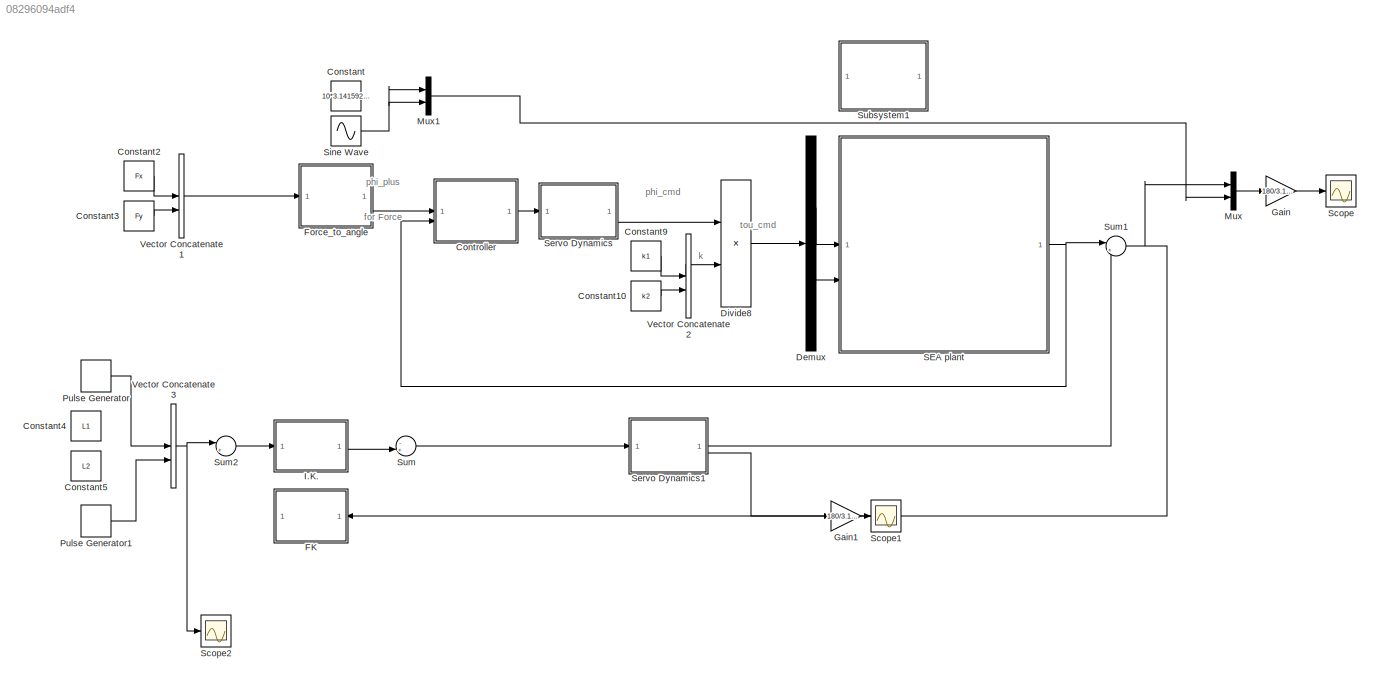
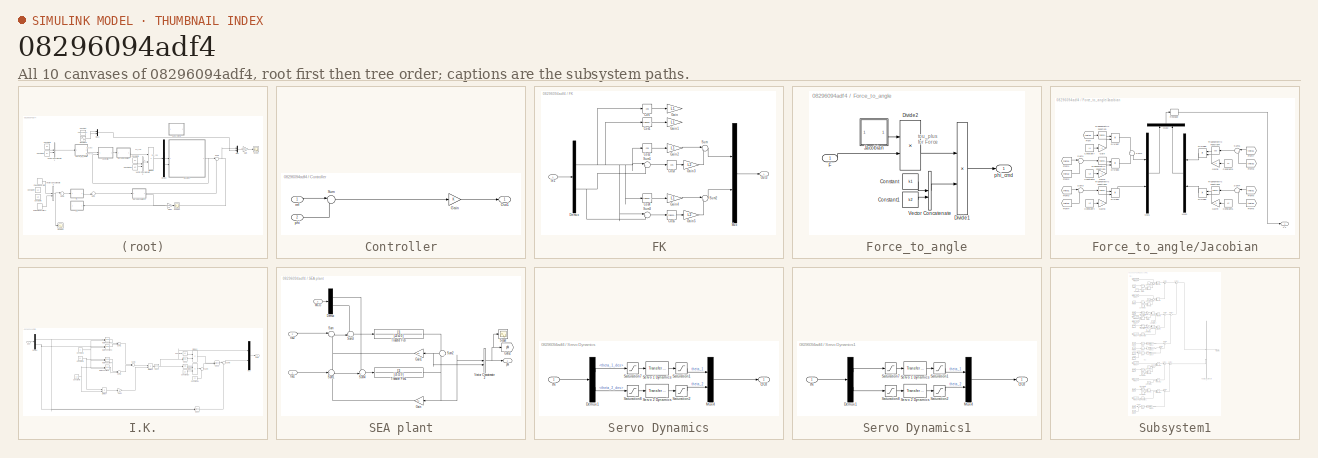
[diagram: thumbnail index - all 10 canvases of the model, root first then tree order]
MODEL slx_08296094adf4
KIND model
CONFIG AbsTol = auto
CONFIG EnableMultiTasking = off
CONFIG FixedStep = auto
CONFIG MaxStep = auto
CONFIG MinStep = auto
CONFIG RelTol = 1e-3
CONFIG SampleTimeConstraint = Unconstrained
CONFIG SolverName = VariableStepAuto
CONFIG StartTime = 0.0
CONFIG StopTime = 30
BLOCK [Constant] Constant
  Value = 10*3.141592/180
BLOCK [Constant] Constant10
  Value = k2
BLOCK [Constant] Constant2
  Value = Fx
BLOCK [Constant] Constant3
  Value = Fy
BLOCK [Constant] Constant4
  Value = L1
BLOCK [Constant] Constant5
  Value = L2
BLOCK [Constant] Constant9
  Value = k1
BLOCK [SubSystem] Controller
BLOCK [Gain] Controller/Gain
BLOCK [Outport] Controller/Out1
BLOCK [Sum] Controller/Sum
  Inputs = |+-
BLOCK [Inport] Controller/phi
  Port = 2
BLOCK [Inport] Controller/ref
BLOCK [Demux] Demux
  Outputs = 2
BLOCK [Product] Divide8
  Inputs = **
BLOCK [SubSystem] FK
BLOCK [Trigonometry] FK/Cos
  Commented = on
  Operator = cos
BLOCK [Trigonometry] FK/Cos1
  Commented = on
BLOCK [Trigonometry] FK/Cos2
  Operator = cos
BLOCK [Trigonometry] FK/Cos3
  Operator = cos
BLOCK [Trigonometry] FK/Cos4
BLOCK [Trigonometry] FK/Cos5
BLOCK [Demux] FK/Demux
  Outputs = 2
BLOCK [Gain] FK/Gain
  Commented = on
  Gain = L1
BLOCK [Gain] FK/Gain1
  Commented = on
  Gain = L1
BLOCK [Gain] FK/Gain2
  Gain = L1
BLOCK [Gain] FK/Gain3
  Gain = L2
BLOCK [Gain] FK/Gain4
  Gain = L1
BLOCK [Gain] FK/Gain5
  Gain = L2
BLOCK [Inport] FK/In1
BLOCK [Mux] FK/Mux
  DisplayOption = bar
  Inputs = 2
BLOCK [Outport] FK/Out3
BLOCK [Sum] FK/Sum
  Inputs = |++
BLOCK [Sum] FK/Sum1
  Inputs = |++
BLOCK [Sum] FK/Sum2
  Inputs = |++
BLOCK [Sum] FK/Sum3
  Inputs = |++
BLOCK [SubSystem] Force_to_angle
BLOCK [Constant] Force_to_angle/Constant
  Value = k1
BLOCK [Constant] Force_to_angle/Constant1
  Value = k2
BLOCK [Product] Force_to_angle/Divide1
  Inputs = */
BLOCK [Product] Force_to_angle/Divide2
  Inputs = **
  Multiplication = Matrix(*)
BLOCK [Inport] Force_to_angle/F
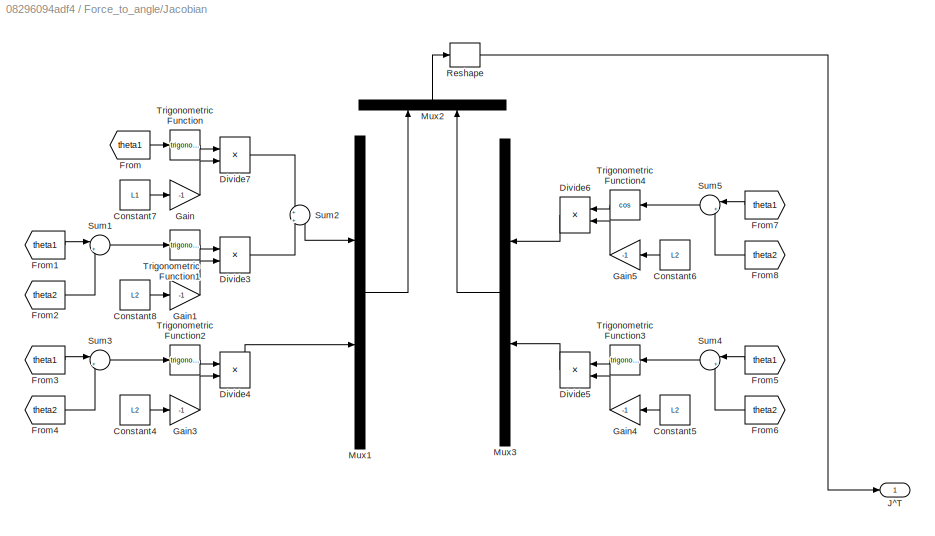
BLOCK [SubSystem] Force_to_angle/Jacobian
BLOCK [Constant] Force_to_angle/Jacobian/Constant4
  Value = L2
BLOCK [Constant] Force_to_angle/Jacobian/Constant5
  Value = L2
BLOCK [Constant] Force_to_angle/Jacobian/Constant6
  Value = L2
BLOCK [Constant] Force_to_angle/Jacobian/Constant7
  Value = L1
BLOCK [Constant] Force_to_angle/Jacobian/Constant8
  Value = L2
BLOCK [Product] Force_to_angle/Jacobian/Divide3
  Inputs = **
BLOCK [Product] Force_to_angle/Jacobian/Divide4
  Inputs = **
BLOCK [Product] Force_to_angle/Jacobian/Divide5
  Inputs = **
BLOCK [Product] Force_to_angle/Jacobian/Divide6
  Inputs = **
BLOCK [Product] Force_to_angle/Jacobian/Divide7
  Inputs = **
BLOCK [From] Force_to_angle/Jacobian/From
  GotoTag = theta1
BLOCK [From] Force_to_angle/Jacobian/From1
  GotoTag = theta1
BLOCK [From] Force_to_angle/Jacobian/From2
  GotoTag = theta2
BLOCK [From] Force_to_angle/Jacobian/From3
  GotoTag = theta1
BLOCK [From] Force_to_angle/Jacobian/From4
  GotoTag = theta2
BLOCK [From] Force_to_angle/Jacobian/From5
  GotoTag = theta1
BLOCK [From] Force_to_angle/Jacobian/From6
  GotoTag = theta2
BLOCK [From] Force_to_angle/Jacobian/From7
  GotoTag = theta1
BLOCK [From] Force_to_angle/Jacobian/From8
  GotoTag = theta2
BLOCK [Gain] Force_to_angle/Jacobian/Gain
  Gain = -1
BLOCK [Gain] Force_to_angle/Jacobian/Gain1
  Gain = -1
BLOCK [Gain] Force_to_angle/Jacobian/Gain3
  Gain = -1
BLOCK [Gain] Force_to_angle/Jacobian/Gain4
  Gain = -1
BLOCK [Gain] Force_to_angle/Jacobian/Gain5
  Gain = -1
BLOCK [Outport] Force_to_angle/Jacobian/J^T
BLOCK [Mux] Force_to_angle/Jacobian/Mux1
  DisplayOption = bar
  Inputs = 2
BLOCK [Mux] Force_to_angle/Jacobian/Mux2
  DisplayOption = bar
  Inputs = 2
  NameLocation = right
BLOCK [Mux] Force_to_angle/Jacobian/Mux3
  DisplayOption = bar
  Inputs = 2
BLOCK [Reshape] Force_to_angle/Jacobian/Reshape
  OutputDimensionality = Customize
  OutputDimensions = [2,2]
BLOCK [Sum] Force_to_angle/Jacobian/Sum1
  Inputs = |++
BLOCK [Sum] Force_to_angle/Jacobian/Sum2
  Inputs = +|+
BLOCK [Sum] Force_to_angle/Jacobian/Sum3
  Inputs = |++
BLOCK [Sum] Force_to_angle/Jacobian/Sum4
  Inputs = |++
BLOCK [Sum] Force_to_angle/Jacobian/Sum5
  Inputs = |++
BLOCK [Trigonometry] Force_to_angle/Jacobian/Trigonometric Function
BLOCK [Trigonometry] Force_to_angle/Jacobian/Trigonometric Function1
BLOCK [Trigonometry] Force_to_angle/Jacobian/Trigonometric Function2
BLOCK [Trigonometry] Force_to_angle/Jacobian/Trigonometric Function3
BLOCK [Trigonometry] Force_to_angle/Jacobian/Trigonometric Function4
  Operator = cos
BLOCK [Concatenate] Force_to_angle/Vector Concatenate
BLOCK [Outport] Force_to_angle/phi_cmd
BLOCK [Gain] Gain
  Gain = 180/3.14159265
BLOCK [Gain] Gain1
  Gain = 180/3.14159265
BLOCK [SubSystem] I.K.
BLOCK [Constant] I.K./Constant1
  Value = 2
BLOCK [Constant] I.K./Constant10
  Value = L2
BLOCK [Constant] I.K./Constant11
  Value = L1
BLOCK [Constant] I.K./Constant4
  Value = L1
BLOCK [Constant] I.K./Constant5
  Value = L2
BLOCK [Constant] I.K./Constant9
  Value = L2
BLOCK [Trigonometry] I.K./Cos1
  Operator = acos
BLOCK [Trigonometry] I.K./Cos2
  Operator = cos
BLOCK [Trigonometry] I.K./Cos3
  Operator = atan2
BLOCK [Trigonometry] I.K./Cos4
  Operator = atan2
BLOCK [Trigonometry] I.K./Cos5
BLOCK [Demux] I.K./Demux
  Outputs = 2
BLOCK [Product] I.K./Divide1
  Inputs = */
BLOCK [Product] I.K./Divide2
  Inputs = **
BLOCK [Product] I.K./Divide4
  Inputs = **
BLOCK [Product] I.K./Divide7
  Inputs = **
BLOCK [Gain] I.K./Gain3
  Gain = 2
BLOCK [Math] I.K./Math Function2
  Operator = pow
BLOCK [Math] I.K./Math Function3
  Operator = pow
BLOCK [Math] I.K./Math Function4
  Operator = pow
BLOCK [Math] I.K./Math Function5
  Operator = pow
BLOCK [Mux] I.K./Mux
  DisplayOption = bar
  Inputs = 2
BLOCK [Sum] I.K./Sum1
  Inputs = |++|
BLOCK [Sum] I.K./Sum2
  Inputs = |--|
BLOCK [Sum] I.K./Sum3
  Inputs = |++|
BLOCK [Sum] I.K./Sum4
  Inputs = |++
BLOCK [Sum] I.K./Sum6
  Inputs = |-+
BLOCK [Inport] I.K./pos
BLOCK [Outport] I.K./theta
BLOCK [Mux] Mux
  DisplayOption = bar
  Inputs = 2
BLOCK [Mux] Mux1
  DisplayOption = bar
  Inputs = 2
BLOCK [DiscretePulseGenerator] Pulse Generator
  Amplitude = 0.20075
  Period = 30
  PhaseDelay = 1
  PulseType = Time based
  PulseWidth = 99
BLOCK [DiscretePulseGenerator] Pulse Generator1
  Amplitude = 0.149
  Period = 30
  PhaseDelay = 1
  PulseType = Time based
  PulseWidth = 99
BLOCK [SubSystem] SEA plant
  PortSchema = {"entries":[{"content":{"sides":[{"content":{"connectorIds":["In1","In2"]},"type":"ConnectorPlacement.EquallySpacedRectSide","uuid":"6ffc343b-5254-4419-ae56-94a8311a5dd4"},{"content":{"connectorIds":["Out1"],"side":"RIGHT"},"type":"ConnectorPlacement.EquallySpacedRectSide","uuid":"318529a5-2b75-41e3-b913-9f4438cf8769"},{"content":{"connectorIds":["In3"],"side":"TOP"},"type":"ConnectorPlacement.Equ...<+251ch>
BLOCK [Demux] SEA plant/Demux
  Outputs = 2
BLOCK [Gain] SEA plant/Gain
  Gain = k1
BLOCK [Gain] SEA plant/Gain1
  Gain = k2
BLOCK [Goto] SEA plant/Goto2
  GotoTag = phi
BLOCK [Inport] SEA plant/MCG
  Port = 3
BLOCK [Scope] SEA plant/Scope
  Floating = off
  NumInputPorts = 1
  ScopeSpecificationString = Simulink.scopes.TimeScopeBlockCfg('CurrentConfiguration', extmgr.ConfigurationSet(extmgr.Configuration('Core','General UI',true),extmgr.Configuration('Core','Source UI',true),extmgr.Configuration('Sources','WiredSimulink',true,'DataLoggingVariableName','ScopeData1'),extmgr.Configuration('Visuals','Time Domain',true,'SerializedDisplays',{struct('MinYLimReal','-1.00000','MaxYLimReal','1.00000','YLab...<+1456ch>
BLOCK [Sum] SEA plant/Sum
  Inputs = |++
BLOCK [Sum] SEA plant/Sum1
  Inputs = -+-
BLOCK [Sum] SEA plant/Sum2
  Inputs = -|+
  NameLocation = top
BLOCK [Sum] SEA plant/Sum3
  Inputs = -+|
BLOCK [Sum] SEA plant/Sum4
  Inputs = -+|
BLOCK [TransferFcn] SEA plant/Transfer Fcn
  Denominator = [J2 c2 0 ]
BLOCK [TransferFcn] SEA plant/Transfer Fcn1
  Denominator = [J1 c1 0 ]
BLOCK [Concatenate] SEA plant/Vector Concatenate2
  NameLocation = right
BLOCK [Outport] SEA plant/phi
BLOCK [Inport] SEA plant/tou1
BLOCK [Inport] SEA plant/tou2
  Port = 2
BLOCK [Scope] Scope
  Floating = off
  NumInputPorts = 1
  ScopeSpecificationString = Simulink.scopes.TimeScopeBlockCfg('CurrentConfiguration', extmgr.ConfigurationSet(extmgr.Configuration('Core','General UI',true),extmgr.Configuration('Core','Source UI',true),extmgr.Configuration('Sources','WiredSimulink',true),extmgr.Configuration('Visuals','Time Domain',true,'SerializedDisplays',{struct('MinYLimReal','-100.23554','MaxYLimReal','329.44717','YLabelReal','','MinYLimMag',' 0.00000',...<+1529ch>
BLOCK [Scope] Scope1
  Floating = off
  NumInputPorts = 1
  ScopeSpecificationString = Simulink.scopes.TimeScopeBlockCfg('CurrentConfiguration', extmgr.ConfigurationSet(extmgr.Configuration('Core','General UI',true),extmgr.Configuration('Core','Source UI',true),extmgr.Configuration('Sources','WiredSimulink',true,'DataLoggingVariableName','ScopeData2'),extmgr.Configuration('Visuals','Time Domain',true,'SerializedDisplays',{struct('MinYLimReal','186.4789','MaxYLimReal','386.4789','YLa...<+1453ch>
BLOCK [Scope] Scope2
  Floating = off
  NumInputPorts = 1
  ScopeSpecificationString = Simulink.scopes.TimeScopeBlockCfg('CurrentConfiguration', extmgr.ConfigurationSet(extmgr.Configuration('Core','General UI',true),extmgr.Configuration('Core','Source UI',true),extmgr.Configuration('Sources','WiredSimulink',true,'DataLoggingVariableName','ScopeData3'),extmgr.Configuration('Visuals','Time Domain',true,'SerializedDisplays',{struct('MinYLimReal','-0.02509','MaxYLimReal','0.22584','YLab...<+1464ch>
BLOCK [SubSystem] Servo Dynamics
BLOCK [Demux] Servo Dynamics/Demux1
  Outputs = 2
BLOCK [Inport] Servo Dynamics/IN
BLOCK [Mux] Servo Dynamics/Mux4
  DisplayOption = bar
  Inputs = 2
BLOCK [Outport] Servo Dynamics/OUT
BLOCK [Saturate] Servo Dynamics/Saturation1
  LowerLimit = -0.3
  UpperLimit = 0.3
BLOCK [Saturate] Servo Dynamics/Saturation2
  LowerLimit = -0.3
  UpperLimit = 0.3
BLOCK [Saturate] Servo Dynamics/Saturation7
  LowerLimit = -0.3
  UpperLimit = 0.3
BLOCK [Saturate] Servo Dynamics/Saturation8
  LowerLimit = -0.3
  UpperLimit = 0.3
BLOCK [Reference] Servo Dynamics/Servo 1 Dynamics  REF=simulink_extras/Additional
Linear/Transfer Fcn
(with initial outputs)
  SourceBlock = simulink_extras/Additional\nLinear/Transfer Fcn\n(with initial outputs)
  SourceType = Transfer Function with Initial Outputs
BLOCK [Reference] Servo Dynamics/Servo 2 Dynamics  REF=simulink_extras/Additional
Linear/Transfer Fcn
(with initial outputs)
  SourceBlock = simulink_extras/Additional\nLinear/Transfer Fcn\n(with initial outputs)
  SourceType = Transfer Function with Initial Outputs
BLOCK [SubSystem] Servo Dynamics1
BLOCK [Demux] Servo Dynamics1/Demux1
  Outputs = 2
BLOCK [Inport] Servo Dynamics1/IN
BLOCK [Mux] Servo Dynamics1/Mux4
  DisplayOption = bar
  Inputs = 2
BLOCK [Outport] Servo Dynamics1/OUT
BLOCK [Saturate] Servo Dynamics1/Saturation1
  LowerLimit = 5
  UpperLimit = 5
BLOCK [Saturate] Servo Dynamics1/Saturation2
  LowerLimit = 5
  UpperLimit = 5
BLOCK [Saturate] Servo Dynamics1/Saturation7
  LowerLimit = 5
  UpperLimit = 5
BLOCK [Saturate] Servo Dynamics1/Saturation8
  LowerLimit = 5
  UpperLimit = 5
BLOCK [Reference] Servo Dynamics1/Servo 1 Dynamics  REF=simulink_extras/Additional
Linear/Transfer Fcn
(with initial outputs)
  SourceBlock = simulink_extras/Additional\nLinear/Transfer Fcn\n(with initial outputs)
  SourceType = Transfer Function with Initial Outputs
BLOCK [Reference] Servo Dynamics1/Servo 2 Dynamics  REF=simulink_extras/Additional
Linear/Transfer Fcn
(with initial outputs)
  SourceBlock = simulink_extras/Additional\nLinear/Transfer Fcn\n(with initial outputs)
  SourceType = Transfer Function with Initial Outputs
BLOCK [Sin] Sine Wave
  Frequency = 10/(2*3.141592)
  SampleTime = 0
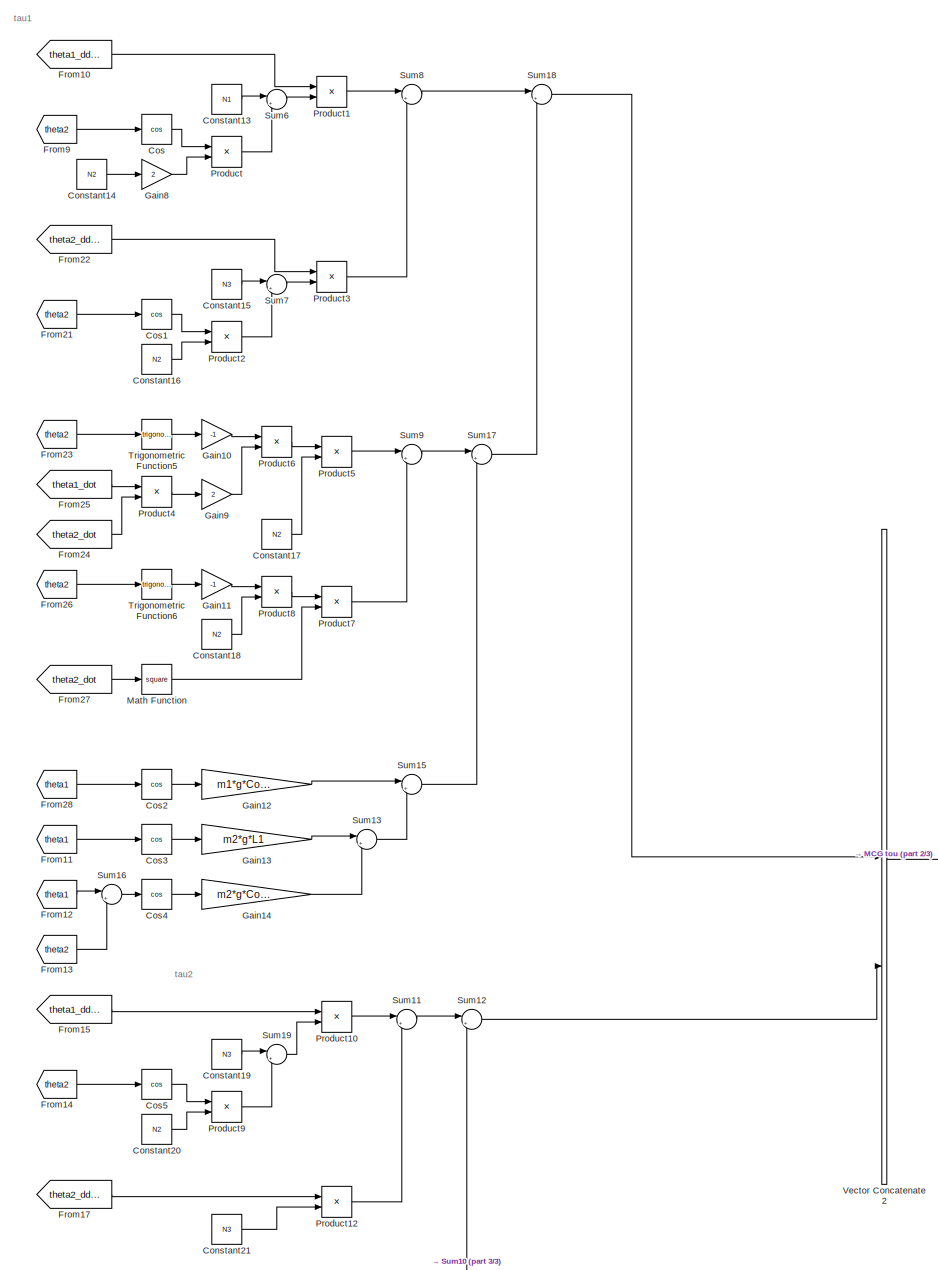
[diagram: Subsystem1 - part 1/3, most of the canvas]
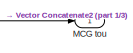
[diagram: Subsystem1 - part 2/3, middle right region]
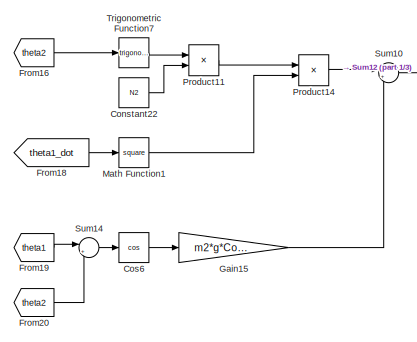
[diagram: Subsystem1 - part 3/3, bottom left region]
BLOCK [SubSystem] Subsystem1
BLOCK [Constant] Subsystem1/Constant13
  Value = N1
BLOCK [Constant] Subsystem1/Constant14
  Value = N2
BLOCK [Constant] Subsystem1/Constant15
  Value = N3
BLOCK [Constant] Subsystem1/Constant16
  Value = N2
BLOCK [Constant] Subsystem1/Constant17
  Value = N2
BLOCK [Constant] Subsystem1/Constant18
  Value = N2
BLOCK [Constant] Subsystem1/Constant19
  Value = N3
BLOCK [Constant] Subsystem1/Constant20
  Value = N2
BLOCK [Constant] Subsystem1/Constant21
  Value = N3
BLOCK [Constant] Subsystem1/Constant22
  Value = N2
BLOCK [Trigonometry] Subsystem1/Cos
  Operator = cos
BLOCK [Trigonometry] Subsystem1/Cos1
  Operator = cos
BLOCK [Trigonometry] Subsystem1/Cos2
  Operator = cos
BLOCK [Trigonometry] Subsystem1/Cos3
  Operator = cos
BLOCK [Trigonometry] Subsystem1/Cos4
  Operator = cos
BLOCK [Trigonometry] Subsystem1/Cos5
  Operator = cos
BLOCK [Trigonometry] Subsystem1/Cos6
  Operator = cos
BLOCK [From] Subsystem1/From10
  GotoTag = theta1_ddot
BLOCK [From] Subsystem1/From11
  GotoTag = theta1
BLOCK [From] Subsystem1/From12
  GotoTag = theta1
BLOCK [From] Subsystem1/From13
  GotoTag = theta2
BLOCK [From] Subsystem1/From14
  GotoTag = theta2
BLOCK [From] Subsystem1/From15
  GotoTag = theta1_ddot
BLOCK [From] Subsystem1/From16
  GotoTag = theta2
BLOCK [From] Subsystem1/From17
  GotoTag = theta2_ddot
BLOCK [From] Subsystem1/From18
  GotoTag = theta1_dot
BLOCK [From] Subsystem1/From19
  GotoTag = theta1
BLOCK [From] Subsystem1/From20
  GotoTag = theta2
BLOCK [From] Subsystem1/From21
  GotoTag = theta2
BLOCK [From] Subsystem1/From22
  GotoTag = theta2_ddot
BLOCK [From] Subsystem1/From23
  GotoTag = theta2
BLOCK [From] Subsystem1/From24
  GotoTag = theta2_dot
BLOCK [From] Subsystem1/From25
  GotoTag = theta1_dot
BLOCK [From] Subsystem1/From26
  GotoTag = theta2
BLOCK [From] Subsystem1/From27
  GotoTag = theta2_dot
BLOCK [From] Subsystem1/From28
  GotoTag = theta1
BLOCK [From] Subsystem1/From9
  GotoTag = theta2
BLOCK [Gain] Subsystem1/Gain10
  Gain = -1
BLOCK [Gain] Subsystem1/Gain11
  Gain = -1
BLOCK [Gain] Subsystem1/Gain12
  Gain = m1*g*CoM1
BLOCK [Gain] Subsystem1/Gain13
  Gain = m2*g*L1
BLOCK [Gain] Subsystem1/Gain14
  Gain = m2*g*CoM2
BLOCK [Gain] Subsystem1/Gain15
  Gain = m2*g*CoM2
BLOCK [Gain] Subsystem1/Gain8
  Gain = 2
BLOCK [Gain] Subsystem1/Gain9
  Gain = 2
BLOCK [Outport] Subsystem1/MCG tou
BLOCK [Math] Subsystem1/Math Function
  Operator = square
BLOCK [Math] Subsystem1/Math Function1
  Operator = square
BLOCK [Product] Subsystem1/Product
BLOCK [Product] Subsystem1/Product1
BLOCK [Product] Subsystem1/Product10
BLOCK [Product] Subsystem1/Product11
BLOCK [Product] Subsystem1/Product12
BLOCK [Product] Subsystem1/Product14
BLOCK [Product] Subsystem1/Product2
BLOCK [Product] Subsystem1/Product3
BLOCK [Product] Subsystem1/Product4
BLOCK [Product] Subsystem1/Product5
BLOCK [Product] Subsystem1/Product6
BLOCK [Product] Subsystem1/Product7
BLOCK [Product] Subsystem1/Product8
BLOCK [Product] Subsystem1/Product9
BLOCK [Sum] Subsystem1/Sum10
  Inputs = |++
BLOCK [Sum] Subsystem1/Sum11
  Inputs = |++
BLOCK [Sum] Subsystem1/Sum12
  Inputs = |++
BLOCK [Sum] Subsystem1/Sum13
  Inputs = |++
BLOCK [Sum] Subsystem1/Sum14
  Inputs = |++
BLOCK [Sum] Subsystem1/Sum15
  Inputs = |++
BLOCK [Sum] Subsystem1/Sum16
  Inputs = |++
BLOCK [Sum] Subsystem1/Sum17
  Inputs = |++
BLOCK [Sum] Subsystem1/Sum18
  Inputs = |++
BLOCK [Sum] Subsystem1/Sum19
  Inputs = |++
BLOCK [Sum] Subsystem1/Sum6
  Inputs = |++
BLOCK [Sum] Subsystem1/Sum7
  Inputs = |++
BLOCK [Sum] Subsystem1/Sum8
  Inputs = |++
BLOCK [Sum] Subsystem1/Sum9
  Inputs = |++
BLOCK [Trigonometry] Subsystem1/Trigonometric Function5
BLOCK [Trigonometry] Subsystem1/Trigonometric Function6
BLOCK [Trigonometry] Subsystem1/Trigonometric Function7
BLOCK [Concatenate] Subsystem1/Vector Concatenate2
  NameLocation = right
BLOCK [Sum] Sum
  Inputs = -+|
BLOCK [Sum] Sum1
  Inputs = |++
BLOCK [Sum] Sum2
  Inputs = |+-
BLOCK [Concatenate] Vector Concatenate1
BLOCK [Concatenate] Vector Concatenate2
  NameLocation = right
BLOCK [Concatenate] Vector Concatenate3
ANNOTATION (root): k
ANNOTATION (root): phi_cmd
ANNOTATION (root): phi_plus for Force
ANNOTATION (root): tou_cmd
ANNOTATION Force_to_angle: tou_plus for Force
ANNOTATION Subsystem1: tau1
ANNOTATION Subsystem1: tau2
LINE Constant10:1 -> Vector Concatenate2:2
LINE Constant2:1 -> Vector Concatenate1:1
LINE Constant3:1 -> Vector Concatenate1:2
LINE Constant9:1 -> Vector Concatenate2:1
LINE Controller/Gain:1 -> Controller/Out1:1
LINE Controller/Sum:1 -> Controller/Gain:1
LINE Controller/phi:1 -> Controller/Sum:2
LINE Controller/ref:1 -> Controller/Sum:1
LINE Controller:1 -> Servo Dynamics:1
LINE Demux:1 -> SEA plant:1
LINE Demux:2 -> SEA plant:2
LINE Divide8:1 -> Demux:1
LINE FK/Cos1:1 -> FK/Gain1:1
LINE FK/Cos2:1 -> FK/Gain2:1
LINE FK/Cos3:1 -> FK/Gain3:1
LINE FK/Cos4:1 -> FK/Gain4:1
LINE FK/Cos5:1 -> FK/Gain5:1
LINE FK/Cos:1 -> FK/Gain:1
NET FK/Demux:1 -> FK/Cos1:1, FK/Cos2:1, FK/Cos4:1, FK/Cos:1, FK/Sum1:1, FK/Sum3:1
NET FK/Demux:2 -> FK/Sum1:2, FK/Sum3:2
LINE FK/Gain2:1 -> FK/Sum:1
LINE FK/Gain3:1 -> FK/Sum:2
LINE FK/Gain4:1 -> FK/Sum2:1
LINE FK/Gain5:1 -> FK/Sum2:2
LINE FK/In1:1 -> FK/Demux:1
LINE FK/Mux:1 -> FK/Out3:1
LINE FK/Sum1:1 -> FK/Cos3:1
LINE FK/Sum2:1 -> FK/Mux:2
LINE FK/Sum3:1 -> FK/Cos5:1
LINE FK/Sum:1 -> FK/Mux:1
LINE Force_to_angle/Constant1:1 -> Force_to_angle/Vector Concatenate:2
LINE Force_to_angle/Constant:1 -> Force_to_angle/Vector Concatenate:1
LINE Force_to_angle/Divide1:1 -> Force_to_angle/phi_cmd:1
LINE Force_to_angle/Divide2:1 -> Force_to_angle/Divide1:1
LINE Force_to_angle/F:1 -> Force_to_angle/Divide2:2
LINE Force_to_angle/Jacobian/Constant4:1 -> Force_to_angle/Jacobian/Gain3:1
LINE Force_to_angle/Jacobian/Constant5:1 -> Force_to_angle/Jacobian/Gain4:1
LINE Force_to_angle/Jacobian/Constant6:1 -> Force_to_angle/Jacobian/Gain5:1
LINE Force_to_angle/Jacobian/Constant7:1 -> Force_to_angle/Jacobian/Gain:1
LINE Force_to_angle/Jacobian/Constant8:1 -> Force_to_angle/Jacobian/Gain1:1
LINE Force_to_angle/Jacobian/Divide3:1 -> Force_to_angle/Jacobian/Sum2:2
LINE Force_to_angle/Jacobian/Divide4:1 -> Force_to_angle/Jacobian/Mux1:2
LINE Force_to_angle/Jacobian/Divide5:1 -> Force_to_angle/Jacobian/Mux3:2
LINE Force_to_angle/Jacobian/Divide6:1 -> Force_to_angle/Jacobian/Mux3:1
LINE Force_to_angle/Jacobian/Divide7:1 -> Force_to_angle/Jacobian/Sum2:1
LINE Force_to_angle/Jacobian/From1:1 -> Force_to_angle/Jacobian/Sum1:1
LINE Force_to_angle/Jacobian/From2:1 -> Force_to_angle/Jacobian/Sum1:2
LINE Force_to_angle/Jacobian/From3:1 -> Force_to_angle/Jacobian/Sum3:1
LINE Force_to_angle/Jacobian/From4:1 -> Force_to_angle/Jacobian/Sum3:2
LINE Force_to_angle/Jacobian/From5:1 -> Force_to_angle/Jacobian/Sum4:1
LINE Force_to_angle/Jacobian/From6:1 -> Force_to_angle/Jacobian/Sum4:2
LINE Force_to_angle/Jacobian/From7:1 -> Force_to_angle/Jacobian/Sum5:1
LINE Force_to_angle/Jacobian/From8:1 -> Force_to_angle/Jacobian/Sum5:2
LINE Force_to_angle/Jacobian/From:1 -> Force_to_angle/Jacobian/Trigonometric Function:1
LINE Force_to_angle/Jacobian/Gain1:1 -> Force_to_angle/Jacobian/Divide3:2
LINE Force_to_angle/Jacobian/Gain3:1 -> Force_to_angle/Jacobian/Divide4:2
LINE Force_to_angle/Jacobian/Gain4:1 -> Force_to_angle/Jacobian/Divide5:2
LINE Force_to_angle/Jacobian/Gain5:1 -> Force_to_angle/Jacobian/Divide6:2
LINE Force_to_angle/Jacobian/Gain:1 -> Force_to_angle/Jacobian/Divide7:2
LINE Force_to_angle/Jacobian/Mux1:1 -> Force_to_angle/Jacobian/Mux2:1
LINE Force_to_angle/Jacobian/Mux2:1 -> Force_to_angle/Jacobian/Reshape:1
LINE Force_to_angle/Jacobian/Mux3:1 -> Force_to_angle/Jacobian/Mux2:2
LINE Force_to_angle/Jacobian/Reshape:1 -> Force_to_angle/Jacobian/J^T:1
LINE Force_to_angle/Jacobian/Sum1:1 -> Force_to_angle/Jacobian/Trigonometric Function1:1
LINE Force_to_angle/Jacobian/Sum2:1 -> Force_to_angle/Jacobian/Mux1:1
LINE Force_to_angle/Jacobian/Sum3:1 -> Force_to_angle/Jacobian/Trigonometric Function2:1
LINE Force_to_angle/Jacobian/Sum4:1 -> Force_to_angle/Jacobian/Trigonometric Function3:1
LINE Force_to_angle/Jacobian/Sum5:1 -> Force_to_angle/Jacobian/Trigonometric Function4:1
LINE Force_to_angle/Jacobian/Trigonometric Function1:1 -> Force_to_angle/Jacobian/Divide3:1
LINE Force_to_angle/Jacobian/Trigonometric Function2:1 -> Force_to_angle/Jacobian/Divide4:1
LINE Force_to_angle/Jacobian/Trigonometric Function3:1 -> Force_to_angle/Jacobian/Divide5:1
LINE Force_to_angle/Jacobian/Trigonometric Function4:1 -> Force_to_angle/Jacobian/Divide6:1
LINE Force_to_angle/Jacobian/Trigonometric Function:1 -> Force_to_angle/Jacobian/Divide7:1
LINE Force_to_angle/Jacobian:1 -> Force_to_angle/Divide2:1
LINE Force_to_angle/Vector Concatenate:1 -> Force_to_angle/Divide1:2
LINE Force_to_angle:1 -> Controller:1
LINE Gain1:1 -> Scope1:1
LINE Gain:1 -> Scope:1
LINE I.K./Constant10:1 -> I.K./Divide4:2
LINE I.K./Constant11:1 -> I.K./Sum4:2
NET I.K./Constant1:1 -> I.K./Math Function2:2, I.K./Math Function3:2, I.K./Math Function4:2, I.K./Math Function5:2
NET I.K./Constant4:1 -> I.K./Divide7:1, I.K./Math Function4:1
NET I.K./Constant5:1 -> I.K./Divide7:2, I.K./Math Function5:1
LINE I.K./Constant9:1 -> I.K./Divide2:1
NET I.K./Cos1:1 -> I.K./Cos2:1, I.K./Cos5:1, I.K./Mux:1
LINE I.K./Cos2:1 -> I.K./Divide4:1
LINE I.K./Cos3:1 -> I.K./Sum6:1
LINE I.K./Cos4:1 -> I.K./Sum6:2
LINE I.K./Cos5:1 -> I.K./Divide2:2
NET I.K./Demux:1 -> I.K./Cos4:2, I.K./Math Function2:1
NET I.K./Demux:2 -> I.K./Cos4:1, I.K./Math Function3:1
LINE I.K./Divide1:1 -> I.K./Cos1:1
LINE I.K./Divide2:1 -> I.K./Cos3:1
LINE I.K./Divide4:1 -> I.K./Sum4:1
LINE I.K./Divide7:1 -> I.K./Gain3:1
LINE I.K./Gain3:1 -> I.K./Divide1:2
LINE I.K./Math Function2:1 -> I.K./Sum1:1
LINE I.K./Math Function3:1 -> I.K./Sum1:2
LINE I.K./Math Function4:1 -> I.K./Sum2:1
LINE I.K./Math Function5:1 -> I.K./Sum2:2
LINE I.K./Mux:1 -> I.K./theta:1
LINE I.K./Sum1:1 -> I.K./Sum3:1
LINE I.K./Sum2:1 -> I.K./Sum3:2
LINE I.K./Sum3:1 -> I.K./Divide1:1
LINE I.K./Sum4:1 -> I.K./Cos3:2
LINE I.K./Sum6:1 -> I.K./Mux:2
LINE I.K./pos:1 -> I.K./Demux:1
LINE I.K.:1 -> Sum:2
LINE Mux1:1 -> Mux:2
LINE Mux:1 -> Gain:1
LINE Pulse Generator1:1 -> Vector Concatenate3:2
LINE Pulse Generator:1 -> Vector Concatenate3:1
LINE SEA plant/Demux:1 -> SEA plant/Sum4:1
LINE SEA plant/Demux:2 -> SEA plant/Sum3:1
NET SEA plant/Gain1:1 -> SEA plant/Sum1:1, SEA plant/Sum:2
LINE SEA plant/Gain:1 -> SEA plant/Sum1:3
LINE SEA plant/MCG:1 -> SEA plant/Demux:1
LINE SEA plant/Sum1:1 -> SEA plant/Sum4:2
NET SEA plant/Sum2:1 -> SEA plant/Gain1:1, SEA plant/Vector Concatenate2:2
LINE SEA plant/Sum3:1 -> SEA plant/Transfer Fcn:1
LINE SEA plant/Sum4:1 -> SEA plant/Transfer Fcn1:1
LINE SEA plant/Sum:1 -> SEA plant/Sum3:2
NET SEA plant/Transfer Fcn1:1 -> SEA plant/Gain:1, SEA plant/Sum2:2, SEA plant/Vector Concatenate2:1
LINE SEA plant/Transfer Fcn:1 -> SEA plant/Sum2:1
NET SEA plant/Vector Concatenate2:1 -> SEA plant/Goto2:1, SEA plant/Scope:1, SEA plant/phi:1
LINE SEA plant/tou1:1 -> SEA plant/Sum1:2
LINE SEA plant/tou2:1 -> SEA plant/Sum:1
NET SEA plant:1 -> Controller:2, Sum1:1
LINE Servo Dynamics/Demux1:1 -> Servo Dynamics/Saturation7:1
LINE Servo Dynamics/Demux1:2 -> Servo Dynamics/Saturation8:1
LINE Servo Dynamics/IN:1 -> Servo Dynamics/Demux1:1
LINE Servo Dynamics/Mux4:1 -> Servo Dynamics/OUT:1
LINE Servo Dynamics/Saturation1:1 -> Servo Dynamics/Mux4:1
LINE Servo Dynamics/Saturation2:1 -> Servo Dynamics/Mux4:2
LINE Servo Dynamics/Saturation7:1 -> Servo Dynamics/Servo 1 Dynamics:1
LINE Servo Dynamics/Saturation8:1 -> Servo Dynamics/Servo 2 Dynamics:1
LINE Servo Dynamics/Servo 1 Dynamics:1 -> Servo Dynamics/Saturation1:1
LINE Servo Dynamics/Servo 2 Dynamics:1 -> Servo Dynamics/Saturation2:1
LINE Servo Dynamics1/Demux1:1 -> Servo Dynamics1/Saturation7:1
LINE Servo Dynamics1/Demux1:2 -> Servo Dynamics1/Saturation8:1
LINE Servo Dynamics1/IN:1 -> Servo Dynamics1/Demux1:1
LINE Servo Dynamics1/Mux4:1 -> Servo Dynamics1/OUT:1
LINE Servo Dynamics1/Saturation1:1 -> Servo Dynamics1/Mux4:1
LINE Servo Dynamics1/Saturation2:1 -> Servo Dynamics1/Mux4:2
LINE Servo Dynamics1/Saturation7:1 -> Servo Dynamics1/Servo 1 Dynamics:1
LINE Servo Dynamics1/Saturation8:1 -> Servo Dynamics1/Servo 2 Dynamics:1
LINE Servo Dynamics1/Servo 1 Dynamics:1 -> Servo Dynamics1/Saturation1:1
LINE Servo Dynamics1/Servo 2 Dynamics:1 -> Servo Dynamics1/Saturation2:1
NET Servo Dynamics1:1 -> Gain1:1, Sum1:2
LINE Servo Dynamics:1 -> Divide8:1
NET Sine Wave:1 -> Mux1:1, Mux1:2
LINE Subsystem1/Constant13:1 -> Subsystem1/Sum6:1
LINE Subsystem1/Constant14:1 -> Subsystem1/Gain8:1
LINE Subsystem1/Constant15:1 -> Subsystem1/Sum7:1
LINE Subsystem1/Constant16:1 -> Subsystem1/Product2:2
LINE Subsystem1/Constant17:1 -> Subsystem1/Product5:2
LINE Subsystem1/Constant18:1 -> Subsystem1/Product8:2
LINE Subsystem1/Constant19:1 -> Subsystem1/Sum19:1
LINE Subsystem1/Constant20:1 -> Subsystem1/Product9:2
LINE Subsystem1/Constant21:1 -> Subsystem1/Product12:2
LINE Subsystem1/Constant22:1 -> Subsystem1/Product11:2
LINE Subsystem1/Cos1:1 -> Subsystem1/Product2:1
LINE Subsystem1/Cos2:1 -> Subsystem1/Gain12:1
LINE Subsystem1/Cos3:1 -> Subsystem1/Gain13:1
LINE Subsystem1/Cos4:1 -> Subsystem1/Gain14:1
LINE Subsystem1/Cos5:1 -> Subsystem1/Product9:1
LINE Subsystem1/Cos6:1 -> Subsystem1/Gain15:1
LINE Subsystem1/Cos:1 -> Subsystem1/Product:1
LINE Subsystem1/From10:1 -> Subsystem1/Product1:1
LINE Subsystem1/From11:1 -> Subsystem1/Cos3:1
LINE Subsystem1/From12:1 -> Subsystem1/Sum16:1
LINE Subsystem1/From13:1 -> Subsystem1/Sum16:2
LINE Subsystem1/From14:1 -> Subsystem1/Cos5:1
LINE Subsystem1/From15:1 -> Subsystem1/Product10:1
LINE Subsystem1/From16:1 -> Subsystem1/Trigonometric Function7:1
LINE Subsystem1/From17:1 -> Subsystem1/Product12:1
LINE Subsystem1/From18:1 -> Subsystem1/Math Function1:1
LINE Subsystem1/From19:1 -> Subsystem1/Sum14:1
LINE Subsystem1/From20:1 -> Subsystem1/Sum14:2
LINE Subsystem1/From21:1 -> Subsystem1/Cos1:1
LINE Subsystem1/From22:1 -> Subsystem1/Product3:1
LINE Subsystem1/From23:1 -> Subsystem1/Trigonometric Function5:1
LINE Subsystem1/From24:1 -> Subsystem1/Product4:2
LINE Subsystem1/From25:1 -> Subsystem1/Product4:1
LINE Subsystem1/From26:1 -> Subsystem1/Trigonometric Function6:1
LINE Subsystem1/From27:1 -> Subsystem1/Math Function:1
LINE Subsystem1/From28:1 -> Subsystem1/Cos2:1
LINE Subsystem1/From9:1 -> Subsystem1/Cos:1
LINE Subsystem1/Gain10:1 -> Subsystem1/Product6:1
LINE Subsystem1/Gain11:1 -> Subsystem1/Product8:1
LINE Subsystem1/Gain12:1 -> Subsystem1/Sum15:1
LINE Subsystem1/Gain13:1 -> Subsystem1/Sum13:1
LINE Subsystem1/Gain14:1 -> Subsystem1/Sum13:2
LINE Subsystem1/Gain15:1 -> Subsystem1/Sum10:2
LINE Subsystem1/Gain8:1 -> Subsystem1/Product:2
LINE Subsystem1/Gain9:1 -> Subsystem1/Product6:2
LINE Subsystem1/Math Function1:1 -> Subsystem1/Product14:2
LINE Subsystem1/Math Function:1 -> Subsystem1/Product7:2
LINE Subsystem1/Product10:1 -> Subsystem1/Sum11:1
LINE Subsystem1/Product11:1 -> Subsystem1/Product14:1
LINE Subsystem1/Product12:1 -> Subsystem1/Sum11:2
LINE Subsystem1/Product14:1 -> Subsystem1/Sum10:1
LINE Subsystem1/Product1:1 -> Subsystem1/Sum8:1
LINE Subsystem1/Product2:1 -> Subsystem1/Sum7:2
LINE Subsystem1/Product3:1 -> Subsystem1/Sum8:2
LINE Subsystem1/Product4:1 -> Subsystem1/Gain9:1
LINE Subsystem1/Product5:1 -> Subsystem1/Sum9:1
LINE Subsystem1/Product6:1 -> Subsystem1/Product5:1
LINE Subsystem1/Product7:1 -> Subsystem1/Sum9:2
LINE Subsystem1/Product8:1 -> Subsystem1/Product7:1
LINE Subsystem1/Product9:1 -> Subsystem1/Sum19:2
LINE Subsystem1/Product:1 -> Subsystem1/Sum6:2
LINE Subsystem1/Sum10:1 -> Subsystem1/Sum12:2
LINE Subsystem1/Sum11:1 -> Subsystem1/Sum12:1
LINE Subsystem1/Sum12:1 -> Subsystem1/Vector Concatenate2:2
LINE Subsystem1/Sum13:1 -> Subsystem1/Sum15:2
LINE Subsystem1/Sum14:1 -> Subsystem1/Cos6:1
LINE Subsystem1/Sum15:1 -> Subsystem1/Sum17:2
LINE Subsystem1/Sum16:1 -> Subsystem1/Cos4:1
LINE Subsystem1/Sum17:1 -> Subsystem1/Sum18:2
LINE Subsystem1/Sum18:1 -> Subsystem1/Vector Concatenate2:1
LINE Subsystem1/Sum19:1 -> Subsystem1/Product10:2
LINE Subsystem1/Sum6:1 -> Subsystem1/Product1:2
LINE Subsystem1/Sum7:1 -> Subsystem1/Product3:2
LINE Subsystem1/Sum8:1 -> Subsystem1/Sum18:1
LINE Subsystem1/Sum9:1 -> Subsystem1/Sum17:1
LINE Subsystem1/Trigonometric Function5:1 -> Subsystem1/Gain10:1
LINE Subsystem1/Trigonometric Function6:1 -> Subsystem1/Gain11:1
LINE Subsystem1/Trigonometric Function7:1 -> Subsystem1/Product11:1
LINE Subsystem1/Vector Concatenate2:1 -> Subsystem1/MCG tou:1
NET Sum1:1 -> FK:1, Mux:1
LINE Sum2:1 -> I.K.:1
LINE Sum:1 -> Servo Dynamics1:1
LINE Vector Concatenate1:1 -> Force_to_angle:1
LINE Vector Concatenate2:1 -> Divide8:2
NET Vector Concatenate3:1 -> Scope2:1, Sum2:1
note: NET lines group one-source signal fan-out (src -> all destinations, sorted); 1:1 wires keep LINE
